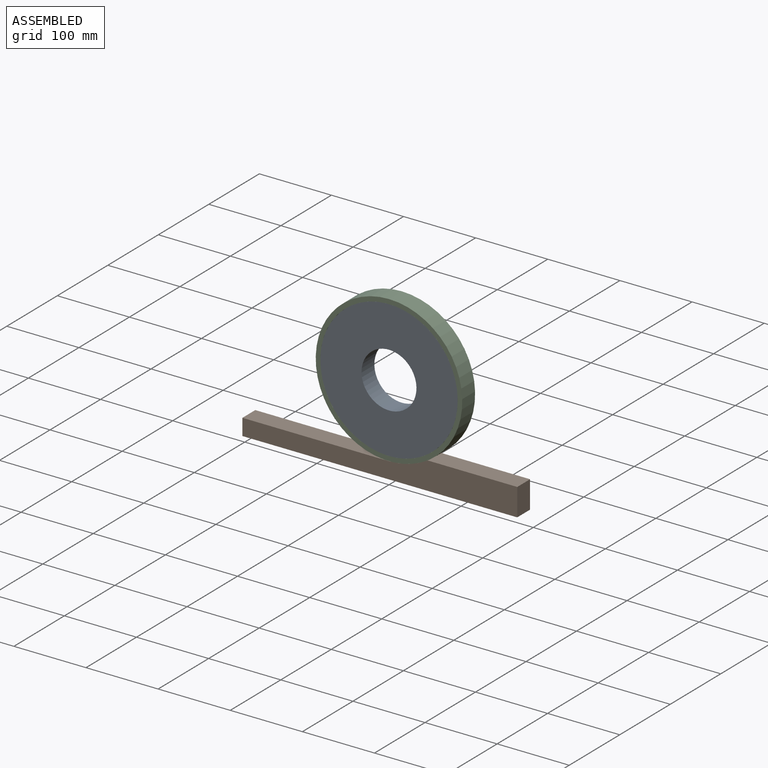
[diagram: assembled view]
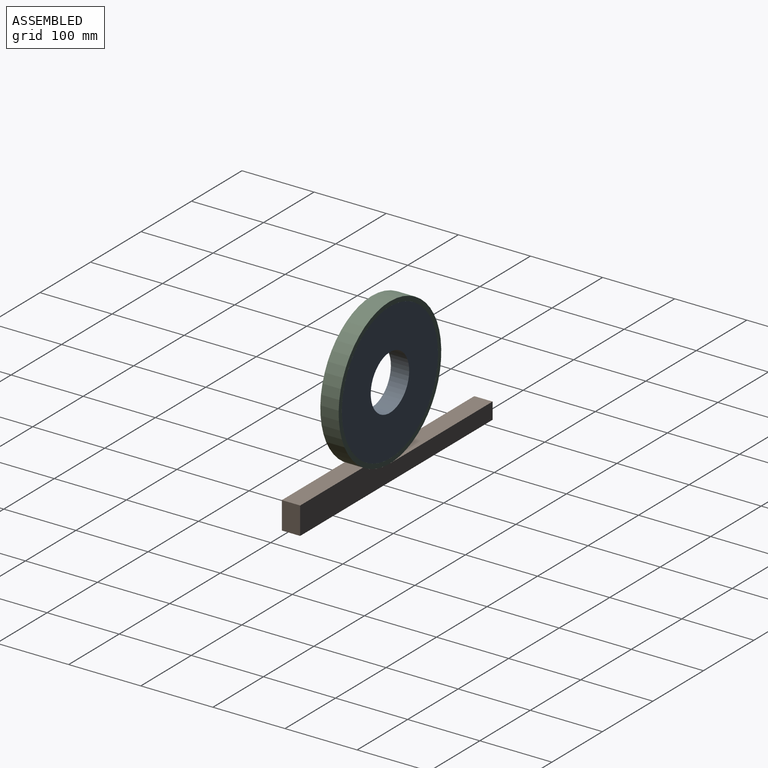
[diagram: assembled view, second angle]
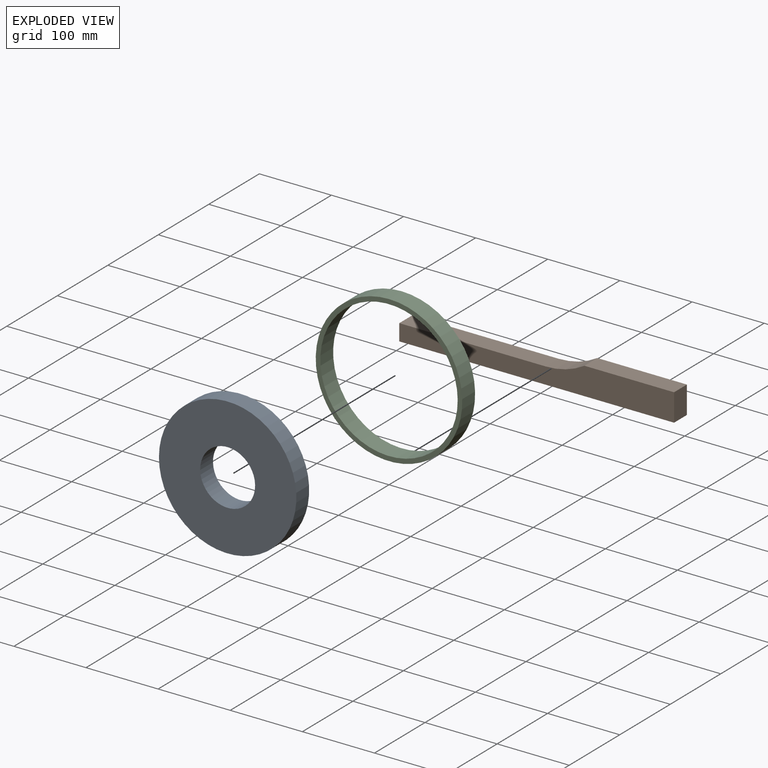
[diagram: exploded view]
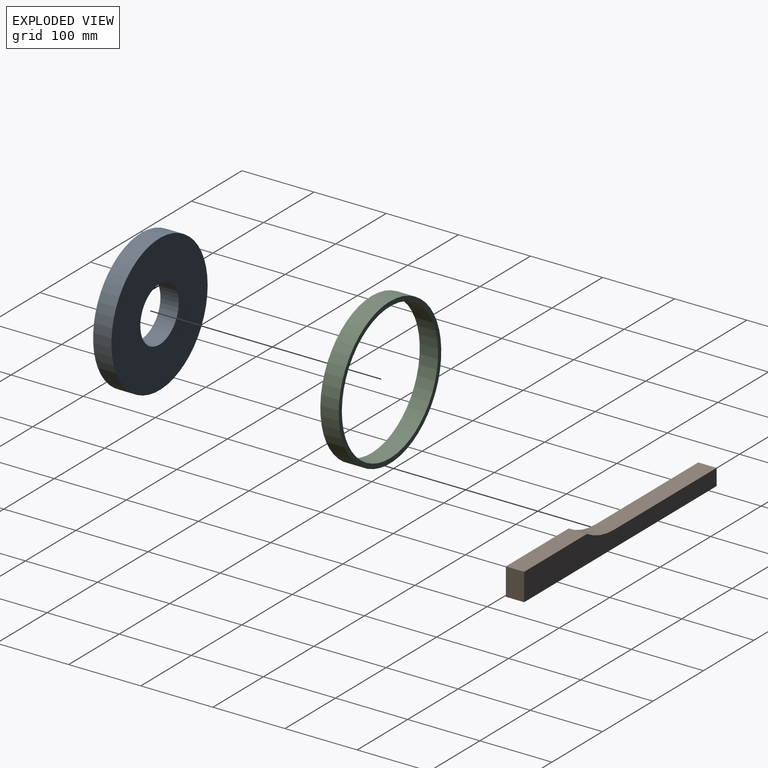
[diagram: exploded view, second angle]
ASSEMBLY  parts=3 mates=2
PART A: 4 faces, bbox 190.5x25.4x190.5 mm
  f0: cylinder r=38.1mm len=76.2mm, axis (0,1,0), area 6080.5mm2, adj f2,f3
  f1: cylinder r=95.25mm len=190.5mm, axis (0,1,0), area 15201.2mm2, adj f2,f3
  f2: plane 190.5x190.5mm, normal (0,-1,0), area 23941.9mm2, adj f0,f1
  f3: plane 190.5x190.5mm, normal (0,1,0), area 23941.9mm2, adj f0,f1
PART B: 8 faces, bbox 381x25.4x38.1 mm
  f0: plane 203.2x25.4mm, normal (0,0,1), area 5161.3mm2, adj f1,f5,f6,f7
  f1: plane 25.4x22.86mm, normal (-1,0,0), area 580.6mm2, adj f0,f2,f6,f7
  f2: plane 381x25.4mm, normal (0,0,-1), area 9677.4mm2, adj f1,f3,f6,f7
  f3: plane 38.1x25.4mm, normal (1,0,0), area 967.7mm2, adj f2,f4,f6,f7
  f4: plane 124.28x25.4mm, normal (0,0,1), area 3156.7mm2, adj f3,f5,f6,f7
  f5: cylinder r=101.6mm len=53.52mm, axis (0,1,0), area 1431.8mm2, adj f0,f4,f6,f7
  f6: plane 381x38.1mm, normal (0,-1,0), area 10866.8mm2, adj f0,f1,f2,f3,f4,f5
  f7: plane 381x38.1mm, normal (0,1,0), area 10866.8mm2, adj f0,f1,f2,f3,f4,f5
PART C: 4 faces, bbox 203.2x25.4x203.2 mm
  f0: cylinder r=95.25mm len=190.5mm, axis (0,1,0), area 15201.2mm2, adj f2,f3
  f1: cylinder r=101.6mm len=203.2mm, axis (0,1,0), area 16214.6mm2, adj f2,f3
  f2: plane 203.2x203.2mm, normal (0,-1,0), area 3927mm2, adj f0,f1
  f3: plane 203.2x203.2mm, normal (0,1,0), area 3927mm2, adj f0,f1
PLACE A rot(axis=(0,1,0),148.8deg) t=(0,25.4,0)mm
PLACE B t=(0,25.4,0)mm
PLACE C rot(axis=(0,-1,0),121.2deg) t=(0,25.4,0)mm
MATE fastened C.f0 <-> A.f1  axis (0,1,0) through (0,12.7,0)mm
MATE revolute C.f1 <-> B.f5  axis (0,1,0) through (0,12.7,0)mm
